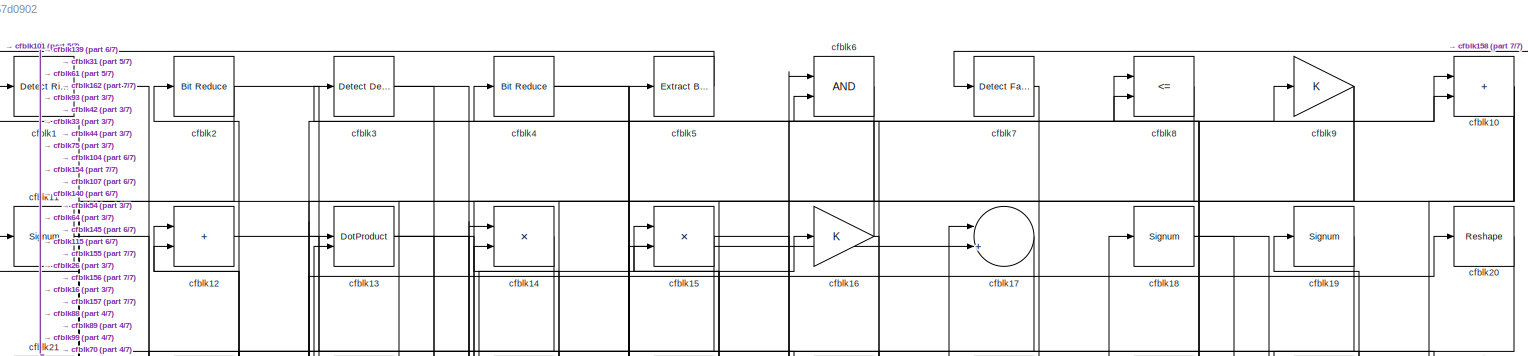
[diagram: root canvas - part 1/7, full width, top band]
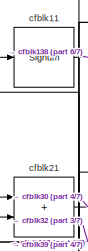
[diagram: root canvas - part 2/7, top left region]
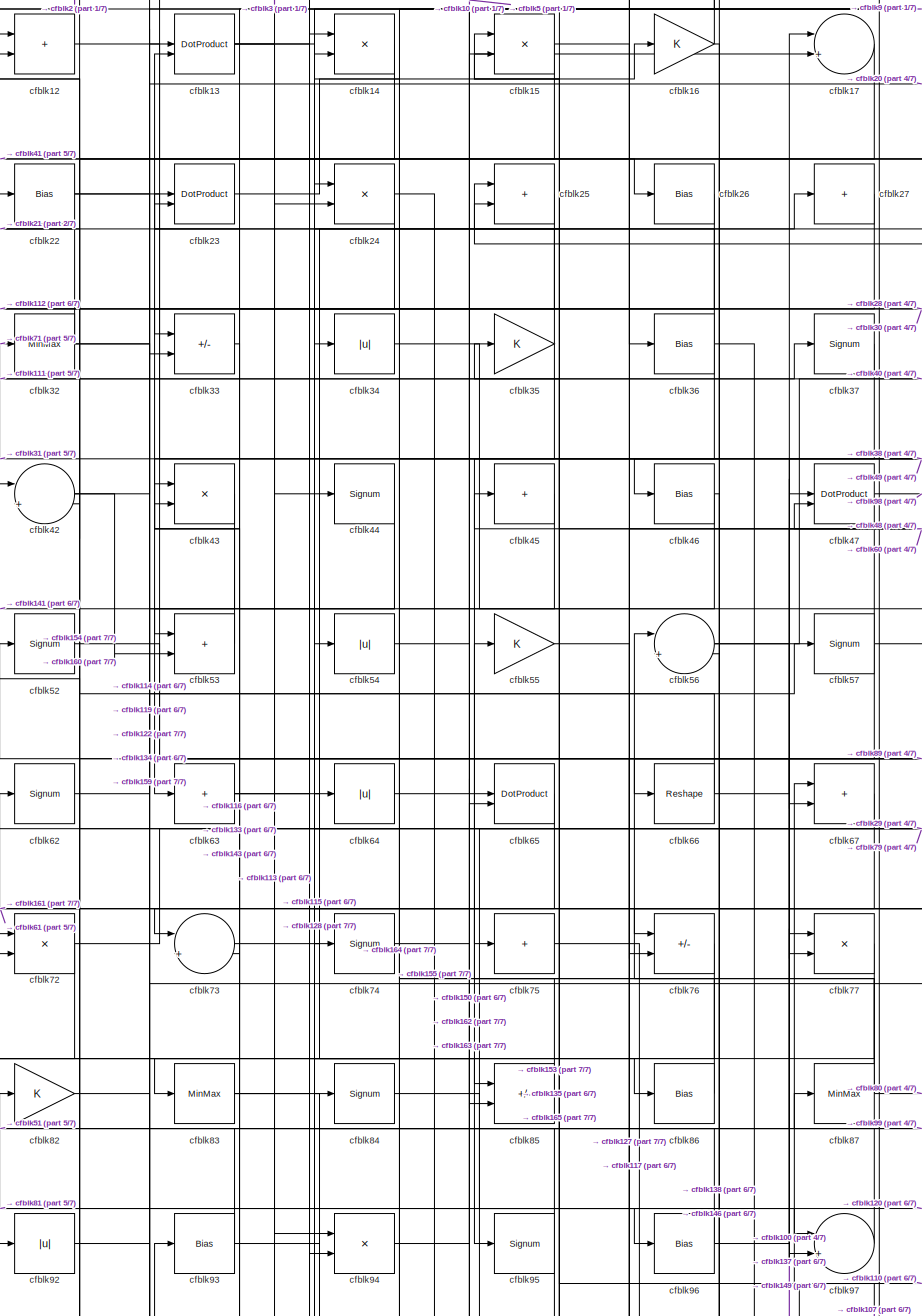
[diagram: root canvas - part 3/7, top center region]
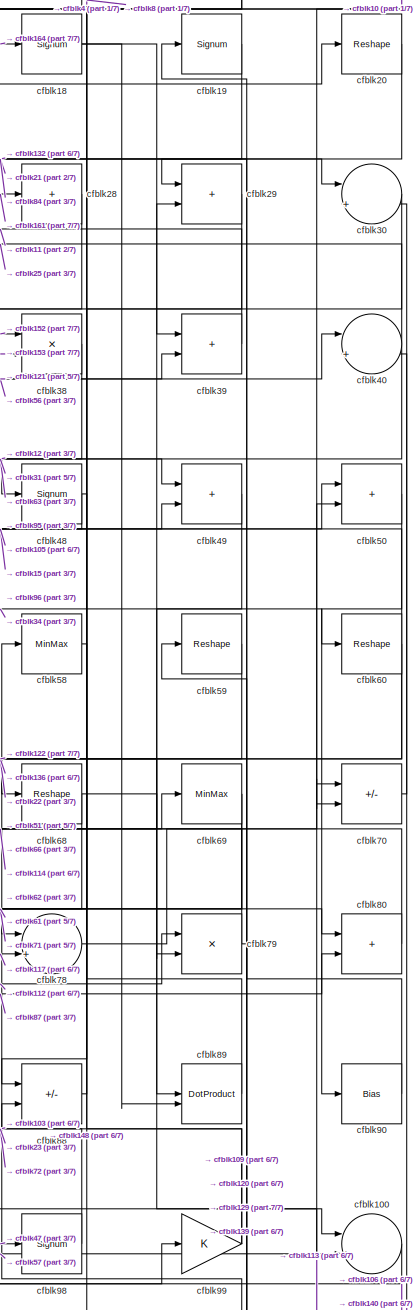
[diagram: root canvas - part 4/7, top right region]
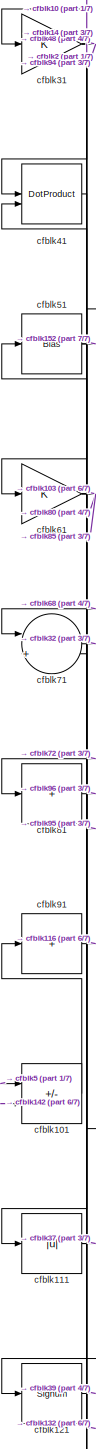
[diagram: root canvas - part 5/7, middle left region]
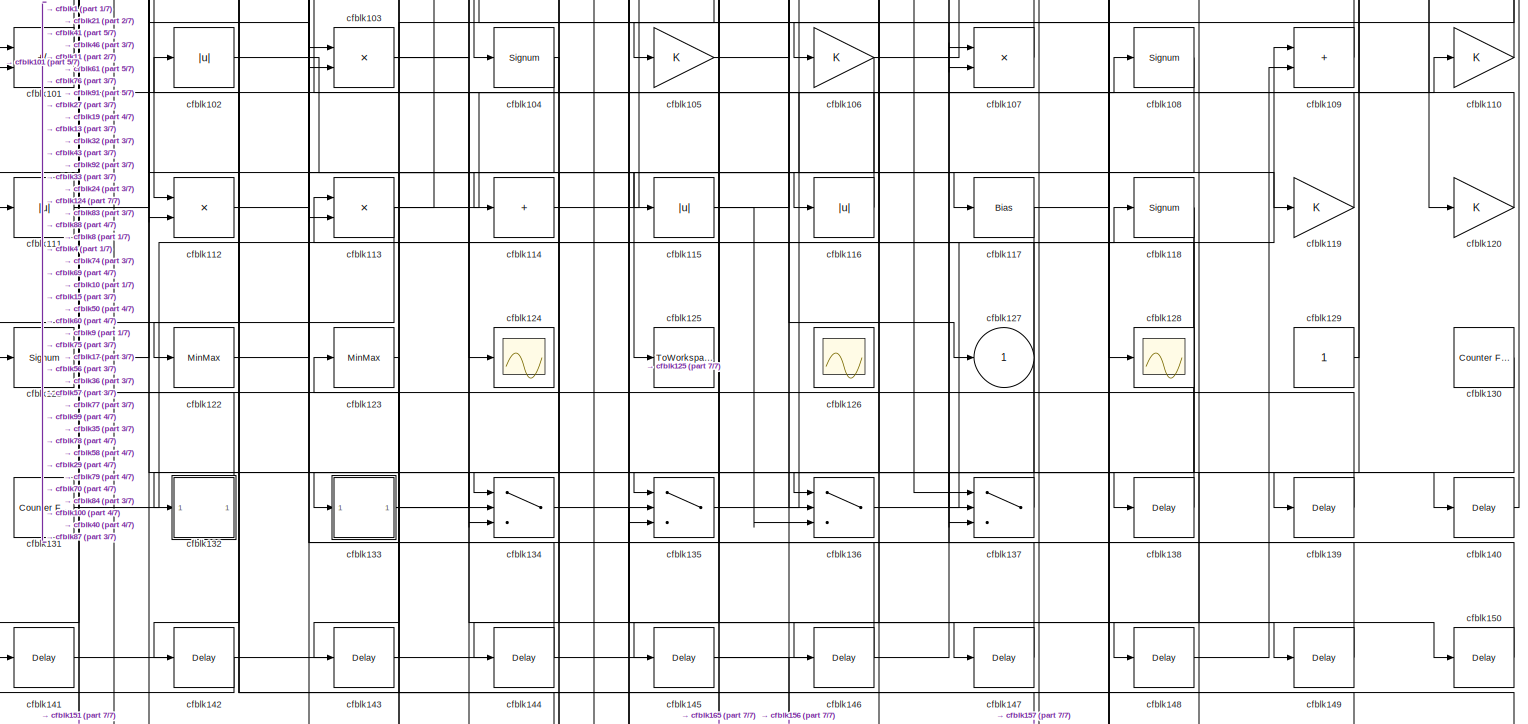
[diagram: root canvas - part 6/7, full width, bottom band]
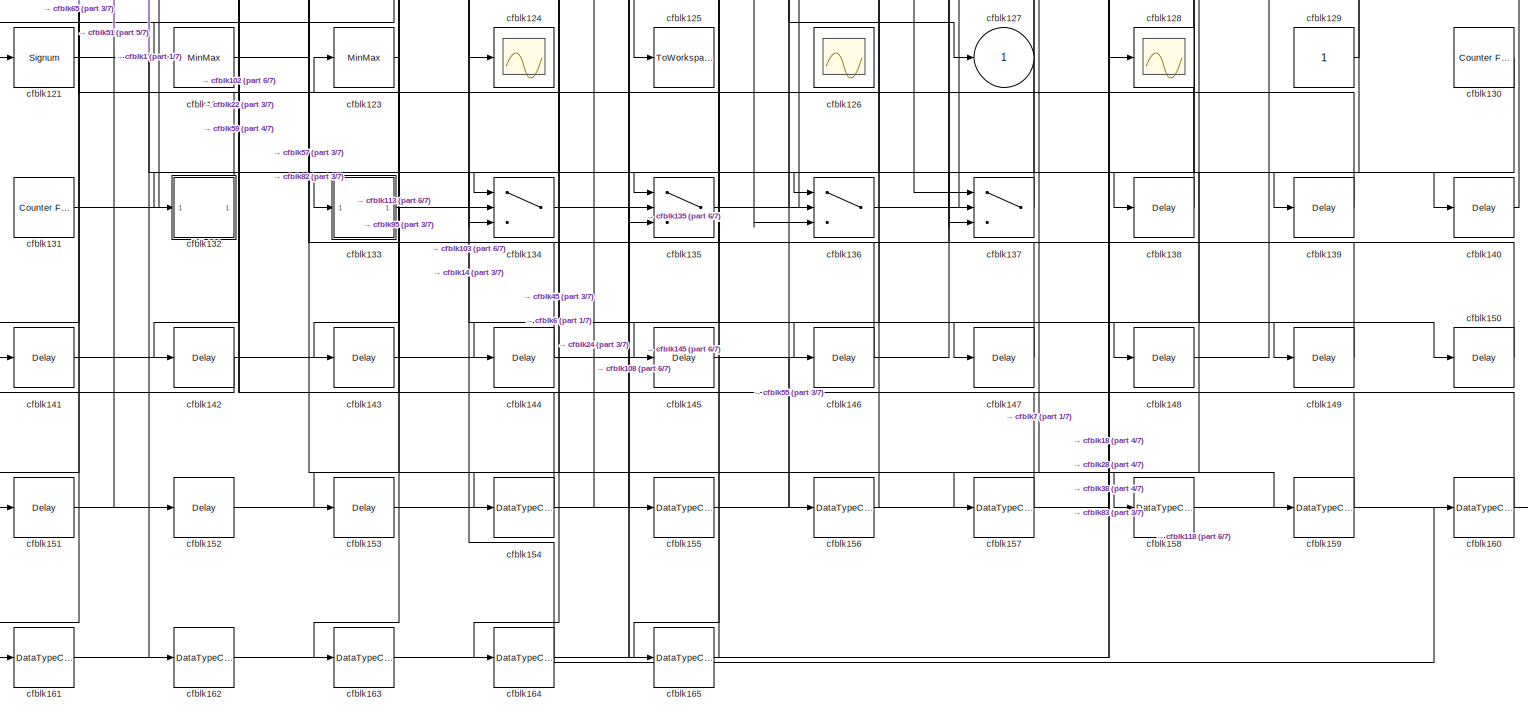
[diagram: root canvas - part 7/7, full width, bottom band]
MODEL slx_a4c6657d0902
KIND model
CONFIG AbsTol = auto
CONFIG EnableMultiTasking = off
CONFIG FixedStep = auto
CONFIG MaxStep = auto
CONFIG MinStep = auto
CONFIG RelTol = 1e-3
CONFIG SampleTimeConstraint = Unconstrained
CONFIG SolverName = VariableStepAuto
CONFIG StartTime = 0.0
CONFIG StopTime = 10.0
BLOCK [Reference] cfblk1  REF=hdlsllib/Logic and Bit
Operations/Detect Rise
Nonnegative
  SourceBlock = hdlsllib/Logic and Bit\nOperations/Detect Rise\nNonnegative
  SourceType = Detect Rise Nonnegative
BLOCK [Sum] cfblk10
  IconShape = rectangular
BLOCK [Sum] cfblk100
  Inputs = |++
BLOCK [Sum] cfblk101
  IconShape = rectangular
  Inputs = +-
BLOCK [Abs] cfblk102
  SaturateOnIntegerOverflow = off
BLOCK [Product] cfblk103
  Inputs = */
  RndMeth = Zero
  SaturateOnIntegerOverflow = on
BLOCK [Signum] cfblk104
BLOCK [Gain] cfblk105
BLOCK [Gain] cfblk106
BLOCK [Product] cfblk107
  Inputs = */
  RndMeth = Zero
  SaturateOnIntegerOverflow = on
BLOCK [Signum] cfblk108
BLOCK [Sum] cfblk109
  IconShape = rectangular
BLOCK [Signum] cfblk11
BLOCK [Gain] cfblk110
BLOCK [Abs] cfblk111
  SaturateOnIntegerOverflow = off
BLOCK [Product] cfblk112
  Inputs = */
  RndMeth = Zero
  SaturateOnIntegerOverflow = on
BLOCK [Product] cfblk113
  Inputs = */
  RndMeth = Zero
  SaturateOnIntegerOverflow = on
BLOCK [Sum] cfblk114
  IconShape = rectangular
  Inputs = +
BLOCK [Abs] cfblk115
  SaturateOnIntegerOverflow = off
BLOCK [Abs] cfblk116
  SaturateOnIntegerOverflow = off
BLOCK [Bias] cfblk117
  Bias = 0.0
  SaturateOnIntegerOverflow = off
BLOCK [Signum] cfblk118
BLOCK [Gain] cfblk119
BLOCK [Sum] cfblk12
  IconShape = rectangular
BLOCK [Gain] cfblk120
BLOCK [Signum] cfblk121
BLOCK [MinMax] cfblk122
BLOCK [MinMax] cfblk123
BLOCK [Scope] cfblk124
  Floating = off
  NumInputPorts = 1
  ScopeSpecificationString = Simulink.scopes.TimeScopeBlockCfg('CurrentConfiguration', extmgr.ConfigurationSet(extmgr.Configuration('Core','General UI',true),extmgr.Configuration('Core','Source UI',true),extmgr.Configuration('Sources','WiredSimulink',true,'DataLoggingVariableName','ScopeData2','DataLoggingSaveFormat','Array','DataLoggingLimitDataPoints',true,'DataLoggingDecimation','1'),extmgr.Configuration('Visuals','Time Do...<+868ch>
BLOCK [ToWorkspace] cfblk125
  MaxDataPoints = inf
  SampleTime = -1
  SaveFormat = Timeseries
  VariableName = simout
BLOCK [Scope] cfblk126
  Floating = on
  NumInputPorts = 1
  ScopeSpecificationString = Simulink.scopes.TimeScopeBlockCfg('CurrentConfiguration', extmgr.ConfigurationSet(extmgr.Configuration('Core','General UI',true,'FigureColor',[0.156862745098039 0.156862745098039 0.156862745098039]),extmgr.Configuration('Core','Source UI',true),extmgr.Configuration('Sources','WiredSimulink',true,'DataLoggingVariableName','ScopeData1','DataLoggingSaveFormat','StructureWithTime','DataLoggingLimitDat...<+2713ch>
BLOCK [Outport] cfblk127
  VectorParamsAs1DForOutWhenUnconnected = off
BLOCK [Scope] cfblk128
  Floating = off
  NumInputPorts = 1
  ScopeSpecificationString = Simulink.scopes.TimeScopeBlockCfg('CurrentConfiguration', extmgr.ConfigurationSet(extmgr.Configuration('Core','General UI',true),extmgr.Configuration('Core','Source UI',true),extmgr.Configuration('Sources','WiredSimulink',true,'DataLoggingVariableName','ScopeData2','DataLoggingSaveFormat','Array','DataLoggingLimitDataPoints',true,'DataLoggingDecimation','1'),extmgr.Configuration('Visuals','Time Do...<+868ch>
BLOCK [Constant] cfblk129
  SampleTime = -1
BLOCK [DotProduct] cfblk13
  OutDataTypeStr = Inherit: Inherit via internal rule
BLOCK [Reference] cfblk130  REF=hdlsllib/Sources/Counter
Free-Running
  SourceBlock = hdlsllib/Sources/Counter\nFree-Running
  SourceType = Counter Free-Running
BLOCK [Reference] cfblk131  REF=hdlsllib/Sources/Counter
Free-Running
  SourceBlock = hdlsllib/Sources/Counter\nFree-Running
  SourceType = Counter Free-Running
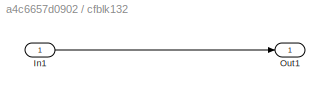
BLOCK [SubSystem] cfblk132
  LibrarySourceBlock = hdlsllib/Ports &\nSubsystems/Subsystem
BLOCK [Inport] cfblk132/In1
BLOCK [Outport] cfblk132/Out1
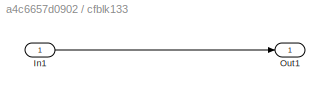
BLOCK [SubSystem] cfblk133
  LibrarySourceBlock = hdlsllib/Ports &\nSubsystems/Subsystem
BLOCK [Inport] cfblk133/In1
BLOCK [Outport] cfblk133/Out1
BLOCK [Switch] cfblk134
  InputSameDT = off
  SaturateOnIntegerOverflow = off
BLOCK [Switch] cfblk135
  InputSameDT = off
  SaturateOnIntegerOverflow = off
BLOCK [Switch] cfblk136
  InputSameDT = off
  SaturateOnIntegerOverflow = off
BLOCK [Switch] cfblk137
  InputSameDT = off
  SaturateOnIntegerOverflow = off
BLOCK [Delay] cfblk138
  InputPortMap = u0
  SampleTime = 1
BLOCK [Delay] cfblk139
  InputPortMap = u0
  SampleTime = 1
BLOCK [Product] cfblk14
  Inputs = */
  RndMeth = Zero
  SaturateOnIntegerOverflow = on
BLOCK [Delay] cfblk140
  InputPortMap = u0
  SampleTime = 1
BLOCK [Delay] cfblk141
  InputPortMap = u0
  SampleTime = 1
BLOCK [Delay] cfblk142
  InputPortMap = u0
  SampleTime = 1
BLOCK [Delay] cfblk143
  InputPortMap = u0
  SampleTime = 1
BLOCK [Delay] cfblk144
  InputPortMap = u0
  SampleTime = 1
BLOCK [Delay] cfblk145
  InputPortMap = u0
  SampleTime = 1
BLOCK [Delay] cfblk146
  InputPortMap = u0
  SampleTime = 1
BLOCK [Delay] cfblk147
  InputPortMap = u0
  SampleTime = 1
BLOCK [Delay] cfblk148
  InputPortMap = u0
  SampleTime = 1
BLOCK [Delay] cfblk149
  InputPortMap = u0
  SampleTime = 1
BLOCK [Product] cfblk15
  Inputs = */
  RndMeth = Zero
  SaturateOnIntegerOverflow = on
BLOCK [Delay] cfblk150
  InputPortMap = u0
  SampleTime = 1
BLOCK [Delay] cfblk151
  InputPortMap = u0
  SampleTime = 1
BLOCK [Delay] cfblk152
  InputPortMap = u0
  SampleTime = 1
BLOCK [Delay] cfblk153
  InputPortMap = u0
  SampleTime = 1
BLOCK [DataTypeConversion] cfblk154
  OutDataTypeStr = uint8
  RndMeth = Floor
  SaturateOnIntegerOverflow = off
BLOCK [DataTypeConversion] cfblk155
  OutDataTypeStr = uint8
  RndMeth = Floor
  SaturateOnIntegerOverflow = off
BLOCK [DataTypeConversion] cfblk156
  OutDataTypeStr = uint8
  RndMeth = Floor
  SaturateOnIntegerOverflow = off
BLOCK [DataTypeConversion] cfblk157
  OutDataTypeStr = uint8
  RndMeth = Floor
  SaturateOnIntegerOverflow = off
BLOCK [DataTypeConversion] cfblk158
  OutDataTypeStr = uint8
  RndMeth = Floor
  SaturateOnIntegerOverflow = off
BLOCK [DataTypeConversion] cfblk159
  OutDataTypeStr = uint8
  RndMeth = Floor
  SaturateOnIntegerOverflow = off
BLOCK [Gain] cfblk16
BLOCK [DataTypeConversion] cfblk160
  OutDataTypeStr = uint8
  RndMeth = Floor
  SaturateOnIntegerOverflow = off
BLOCK [DataTypeConversion] cfblk161
  OutDataTypeStr = uint8
  RndMeth = Floor
  SaturateOnIntegerOverflow = off
BLOCK [DataTypeConversion] cfblk162
  OutDataTypeStr = uint8
  RndMeth = Floor
  SaturateOnIntegerOverflow = off
BLOCK [DataTypeConversion] cfblk163
  OutDataTypeStr = uint8
  RndMeth = Floor
  SaturateOnIntegerOverflow = off
BLOCK [DataTypeConversion] cfblk164
  RndMeth = Floor
  SaturateOnIntegerOverflow = off
BLOCK [DataTypeConversion] cfblk165
  OutDataTypeStr = uint8
  RndMeth = Floor
  SaturateOnIntegerOverflow = off
BLOCK [Sum] cfblk17
  Inputs = |++
BLOCK [Signum] cfblk18
BLOCK [Signum] cfblk19
BLOCK [Reference] cfblk2  REF=hdlsllib/Logic and Bit
Operations/Bit Reduce
  SourceBlock = hdlsllib/Logic and Bit\nOperations/Bit Reduce
  SourceType = Bit Reduce
BLOCK [Reshape] cfblk20
BLOCK [Sum] cfblk21
  IconShape = rectangular
BLOCK [Bias] cfblk22
  Bias = 0.0
  SaturateOnIntegerOverflow = off
BLOCK [DotProduct] cfblk23
  OutDataTypeStr = Inherit: Inherit via internal rule
BLOCK [Product] cfblk24
  Inputs = */
  RndMeth = Zero
  SaturateOnIntegerOverflow = on
BLOCK [Sum] cfblk25
  IconShape = rectangular
BLOCK [Bias] cfblk26
  Bias = 0.0
  SaturateOnIntegerOverflow = off
BLOCK [Sum] cfblk27
  IconShape = rectangular
  Inputs = +
BLOCK [Sum] cfblk28
  IconShape = rectangular
  Inputs = +
BLOCK [Sum] cfblk29
  IconShape = rectangular
BLOCK [Reference] cfblk3  REF=simulink/Logic and Bit
Operations/Detect
Decrease
  LibrarySourceBlock = hdlsllib/Logic and Bit\nOperations/Detect\nDecrease
  SourceBlock = simulink/Logic and Bit\nOperations/Detect\nDecrease
  SourceType = Detect Decrease
BLOCK [Sum] cfblk30
  Inputs = |++
BLOCK [Gain] cfblk31
BLOCK [MinMax] cfblk32
BLOCK [Sum] cfblk33
  IconShape = rectangular
  Inputs = +-
BLOCK [Abs] cfblk34
  SaturateOnIntegerOverflow = off
BLOCK [Gain] cfblk35
BLOCK [Bias] cfblk36
  Bias = 0.0
  SaturateOnIntegerOverflow = off
BLOCK [Signum] cfblk37
BLOCK [Product] cfblk38
  Inputs = */
  RndMeth = Zero
  SaturateOnIntegerOverflow = on
BLOCK [Sum] cfblk39
  IconShape = rectangular
BLOCK [Reference] cfblk4  REF=hdlsllib/Logic and Bit
Operations/Bit Reduce
  SourceBlock = hdlsllib/Logic and Bit\nOperations/Bit Reduce
  SourceType = Bit Reduce
BLOCK [Sum] cfblk40
  Inputs = |++
BLOCK [DotProduct] cfblk41
  OutDataTypeStr = Inherit: Inherit via internal rule
BLOCK [Sum] cfblk42
  Inputs = |++
BLOCK [Product] cfblk43
  Inputs = */
  RndMeth = Zero
  SaturateOnIntegerOverflow = on
BLOCK [Signum] cfblk44
BLOCK [Sum] cfblk45
  IconShape = rectangular
  Inputs = +
BLOCK [Bias] cfblk46
  Bias = 0.0
  SaturateOnIntegerOverflow = off
BLOCK [DotProduct] cfblk47
  OutDataTypeStr = Inherit: Inherit via internal rule
BLOCK [Signum] cfblk48
BLOCK [Sum] cfblk49
  IconShape = rectangular
BLOCK [Reference] cfblk5  REF=simulink/Logic and Bit
Operations/Extract Bits
  LibrarySourceBlock = hdlsllib/Logic and Bit\nOperations/Extract Bits
  SourceBlock = simulink/Logic and Bit\nOperations/Extract Bits
  SourceType = Extract Bits
BLOCK [Sum] cfblk50
  IconShape = rectangular
BLOCK [Bias] cfblk51
  Bias = 0.0
  SaturateOnIntegerOverflow = off
BLOCK [Signum] cfblk52
BLOCK [Sum] cfblk53
  IconShape = rectangular
BLOCK [Abs] cfblk54
  SaturateOnIntegerOverflow = off
BLOCK [Gain] cfblk55
BLOCK [Sum] cfblk56
  Inputs = |++
BLOCK [Signum] cfblk57
BLOCK [MinMax] cfblk58
BLOCK [Reshape] cfblk59
BLOCK [Logic] cfblk6
  AllPortsSameDT = off
  OutDataTypeStr = boolean
BLOCK [Reshape] cfblk60
BLOCK [Gain] cfblk61
BLOCK [Signum] cfblk62
BLOCK [Sum] cfblk63
  IconShape = rectangular
  Inputs = +
BLOCK [Abs] cfblk64
  SaturateOnIntegerOverflow = off
BLOCK [DotProduct] cfblk65
  OutDataTypeStr = Inherit: Inherit via internal rule
BLOCK [Reshape] cfblk66
BLOCK [Sum] cfblk67
  IconShape = rectangular
BLOCK [Reshape] cfblk68
BLOCK [MinMax] cfblk69
BLOCK [Reference] cfblk7  REF=hdlsllib/Logic and Bit
Operations/Detect Fall
Nonpositive
  SourceBlock = hdlsllib/Logic and Bit\nOperations/Detect Fall\nNonpositive
  SourceType = Detect Fall Nonpositive
BLOCK [Sum] cfblk70
  IconShape = rectangular
  Inputs = +-
BLOCK [Sum] cfblk71
  Inputs = |++
BLOCK [Product] cfblk72
  Inputs = */
  RndMeth = Zero
  SaturateOnIntegerOverflow = on
BLOCK [Sum] cfblk73
  Inputs = |++
BLOCK [Signum] cfblk74
BLOCK [Sum] cfblk75
  IconShape = rectangular
  Inputs = +
BLOCK [Sum] cfblk76
  IconShape = rectangular
  Inputs = +-
BLOCK [Product] cfblk77
  Inputs = */
  RndMeth = Zero
  SaturateOnIntegerOverflow = on
BLOCK [Sum] cfblk78
  Inputs = |++
BLOCK [Product] cfblk79
  Inputs = */
  RndMeth = Zero
  SaturateOnIntegerOverflow = on
BLOCK [RelationalOperator] cfblk8
  InputSameDT = off
  Operator = <=
  OutDataTypeStr = boolean
BLOCK [Sum] cfblk80
  IconShape = rectangular
BLOCK [Sum] cfblk81
  IconShape = rectangular
  Inputs = +
BLOCK [Gain] cfblk82
BLOCK [MinMax] cfblk83
BLOCK [Signum] cfblk84
BLOCK [Sum] cfblk85
  IconShape = rectangular
  Inputs = +-
BLOCK [Bias] cfblk86
  Bias = 0.0
  SaturateOnIntegerOverflow = off
BLOCK [MinMax] cfblk87
BLOCK [Sum] cfblk88
  IconShape = rectangular
  Inputs = +-
BLOCK [DotProduct] cfblk89
  OutDataTypeStr = Inherit: Inherit via internal rule
BLOCK [Gain] cfblk9
BLOCK [Bias] cfblk90
  Bias = 0.0
  SaturateOnIntegerOverflow = off
BLOCK [Sum] cfblk91
  IconShape = rectangular
  Inputs = +
BLOCK [Abs] cfblk92
  SaturateOnIntegerOverflow = off
BLOCK [Bias] cfblk93
  Bias = 0.0
  SaturateOnIntegerOverflow = off
BLOCK [Product] cfblk94
  Inputs = */
  RndMeth = Zero
  SaturateOnIntegerOverflow = on
BLOCK [Signum] cfblk95
BLOCK [Bias] cfblk96
  Bias = 0.0
  SaturateOnIntegerOverflow = off
BLOCK [Sum] cfblk97
  Inputs = |++
BLOCK [Signum] cfblk98
BLOCK [Gain] cfblk99
LINE cfblk100:1 -> cfblk106:1
LINE cfblk101:1 -> cfblk91:1
LINE cfblk102:1 -> cfblk134:2
NET cfblk103:1 -> cfblk124:1, cfblk88:2
NET cfblk104:1 -> cfblk143:1, cfblk144:1
LINE cfblk105:1 -> cfblk50:1
NET cfblk106:1 -> cfblk134:1, cfblk99:1
LINE cfblk107:1 -> cfblk35:1
LINE cfblk108:1 -> cfblk125:1
LINE cfblk109:1 -> cfblk58:1
NET cfblk10:1 -> cfblk145:1, cfblk61:1, cfblk70:2
LINE cfblk110:1 -> cfblk87:1
NET cfblk111:1 -> cfblk37:1, cfblk71:2
LINE cfblk112:1 -> cfblk79:1
NET cfblk113:1 -> cfblk151:1, cfblk24:2, cfblk70:1
LINE cfblk114:1 -> cfblk69:1
NET cfblk115:1 -> cfblk136:3, cfblk9:1
LINE cfblk116:1 -> cfblk43:1
NET cfblk117:1 -> cfblk142:1, cfblk78:2
NET cfblk118:1 -> cfblk137:3, cfblk165:1
LINE cfblk119:1 -> cfblk21:1
LINE cfblk11:1 -> cfblk138:1
LINE cfblk120:1 -> cfblk29:1
LINE cfblk121:1 -> cfblk39:2
LINE cfblk122:1 -> cfblk57:1
LINE cfblk123:1 -> cfblk163:1
LINE cfblk129:1 -> cfblk59:1
LINE cfblk12:1 -> cfblk49:1
LINE cfblk130:1 -> cfblk158:1
LINE cfblk131:1 -> cfblk118:1
LINE cfblk132/In1:1 -> cfblk132/Out1:1
LINE cfblk132:1 -> cfblk41:2
LINE cfblk133/In1:1 -> cfblk133/Out1:1
NET cfblk133:1 -> cfblk108:1, cfblk147:1
LINE cfblk134:1 -> cfblk149:1
LINE cfblk135:1 -> cfblk110:1
LINE cfblk136:1 -> cfblk109:1
LINE cfblk137:1 -> cfblk113:1
LINE cfblk138:1 -> cfblk56:2
LINE cfblk139:1 -> cfblk1:1
NET cfblk13:1 -> cfblk54:1, cfblk85:2, cfblk94:1
LINE cfblk140:1 -> cfblk40:2
LINE cfblk141:1 -> cfblk107:1
LINE cfblk142:1 -> cfblk101:2
LINE cfblk143:1 -> cfblk43:2
LINE cfblk144:1 -> cfblk103:1
LINE cfblk145:1 -> cfblk156:1
LINE cfblk146:1 -> cfblk13:1
LINE cfblk147:1 -> cfblk135:2
LINE cfblk148:1 -> cfblk109:2
LINE cfblk149:1 -> cfblk77:1
LINE cfblk14:1 -> cfblk41:1
LINE cfblk150:1 -> cfblk15:2
LINE cfblk151:1 -> cfblk135:3
LINE cfblk152:1 -> cfblk38:1
LINE cfblk153:1 -> cfblk38:2
LINE cfblk154:1 -> cfblk22:1
LINE cfblk155:1 -> cfblk6:1
LINE cfblk156:1 -> cfblk6:2
LINE cfblk157:1 -> cfblk102:1
LINE cfblk158:1 -> cfblk7:1
LINE cfblk159:1 -> cfblk123:1
NET cfblk15:1 -> cfblk36:1, cfblk42:2
LINE cfblk160:1 -> cfblk82:1
LINE cfblk161:1 -> cfblk28:1
LINE cfblk162:1 -> cfblk65:1
LINE cfblk163:1 -> cfblk65:2
NET cfblk164:1 -> cfblk14:1, cfblk160:1, cfblk18:1
LINE cfblk165:1 -> cfblk45:1
NET cfblk16:1 -> cfblk3:1, cfblk46:1
LINE cfblk17:1 -> cfblk146:1
NET cfblk18:1 -> cfblk39:1, cfblk89:2
LINE cfblk19:1 -> cfblk132:1
LINE cfblk1:1 -> cfblk162:1
LINE cfblk20:1 -> cfblk84:1
LINE cfblk21:1 -> cfblk30:1
NET cfblk22:1 -> cfblk67:2, cfblk89:1
LINE cfblk23:1 -> cfblk16:1
NET cfblk24:1 -> cfblk155:1, cfblk73:1
LINE cfblk25:1 -> cfblk42:1
LINE cfblk26:1 -> cfblk83:1
LINE cfblk27:1 -> cfblk112:1
LINE cfblk28:1 -> cfblk34:1
LINE cfblk29:1 -> cfblk78:1
NET cfblk2:1 -> cfblk26:1, cfblk31:1
LINE cfblk30:1 -> cfblk72:2
NET cfblk31:1 -> cfblk111:1, cfblk48:1, cfblk94:2
NET cfblk32:1 -> cfblk114:1, cfblk119:1, cfblk21:2
LINE cfblk33:1 -> cfblk133:1
LINE cfblk34:1 -> cfblk60:1
NET cfblk35:1 -> cfblk14:2, cfblk93:1
NET cfblk36:1 -> cfblk135:1, cfblk137:1, cfblk23:2
LINE cfblk37:1 -> cfblk77:2
LINE cfblk38:1 -> cfblk95:1
LINE cfblk39:1 -> cfblk11:1
NET cfblk3:1 -> cfblk44:1, cfblk75:1
NET cfblk40:1 -> cfblk25:2, cfblk63:1
LINE cfblk41:1 -> cfblk121:1
NET cfblk42:1 -> cfblk10:2, cfblk53:2
LINE cfblk43:1 -> cfblk113:2
NET cfblk44:1 -> cfblk53:1, cfblk73:2
LINE cfblk45:1 -> cfblk164:1
NET cfblk46:1 -> cfblk141:1, cfblk76:1
LINE cfblk47:1 -> cfblk98:1
NET cfblk48:1 -> cfblk47:2, cfblk88:1
LINE cfblk49:1 -> cfblk79:2
NET cfblk4:1 -> cfblk107:2, cfblk140:1
LINE cfblk50:1 -> cfblk90:1
NET cfblk51:1 -> cfblk152:1, cfblk68:1
LINE cfblk52:1 -> cfblk76:2
LINE cfblk53:1 -> cfblk13:2
LINE cfblk54:1 -> cfblk10:1
LINE cfblk55:1 -> cfblk127:1
NET cfblk56:1 -> cfblk40:1, cfblk97:2
NET cfblk57:1 -> cfblk100:2, cfblk137:2, cfblk25:1
LINE cfblk58:1 -> cfblk148:1
LINE cfblk59:1 -> cfblk122:1
LINE cfblk5:1 -> cfblk101:1
NET cfblk60:1 -> cfblk136:2, cfblk15:1, cfblk66:1
NET cfblk61:1 -> cfblk103:2, cfblk80:1, cfblk85:1
LINE cfblk62:1 -> cfblk20:1
NET cfblk63:1 -> cfblk86:1, cfblk97:1
LINE cfblk64:1 -> cfblk5:1
LINE cfblk65:1 -> cfblk161:1
NET cfblk66:1 -> cfblk12:2, cfblk17:1
LINE cfblk67:1 -> cfblk74:1
NET cfblk68:1 -> cfblk100:1, cfblk71:1
NET cfblk69:1 -> cfblk105:1, cfblk136:1
LINE cfblk6:1 -> cfblk154:1
LINE cfblk70:1 -> cfblk30:2
LINE cfblk71:1 -> cfblk32:1
NET cfblk72:1 -> cfblk29:2, cfblk81:1
LINE cfblk73:1 -> cfblk27:1
LINE cfblk74:1 -> cfblk150:1
LINE cfblk75:1 -> cfblk117:1
LINE cfblk76:1 -> cfblk112:2
LINE cfblk77:1 -> cfblk92:1
LINE cfblk78:1 -> cfblk50:2
NET cfblk79:1 -> cfblk139:1, cfblk62:1
LINE cfblk7:1 -> cfblk157:1
LINE cfblk80:1 -> cfblk12:1
LINE cfblk81:1 -> cfblk96:1
LINE cfblk82:1 -> cfblk159:1
NET cfblk83:1 -> cfblk115:1, cfblk128:1
LINE cfblk84:1 -> cfblk120:1
LINE cfblk85:1 -> cfblk55:1
LINE cfblk86:1 -> cfblk64:1
NET cfblk87:1 -> cfblk24:1, cfblk56:1, cfblk80:2
LINE cfblk88:1 -> cfblk8:1
LINE cfblk89:1 -> cfblk4:1
LINE cfblk8:1 -> cfblk104:1
LINE cfblk90:1 -> cfblk19:1
LINE cfblk91:1 -> cfblk116:1
LINE cfblk92:1 -> cfblk134:3
NET cfblk93:1 -> cfblk2:1, cfblk47:1
LINE cfblk94:1 -> cfblk17:2
NET cfblk95:1 -> cfblk153:1, cfblk51:1
NET cfblk96:1 -> cfblk49:2, cfblk52:1
LINE cfblk97:1 -> cfblk67:1
LINE cfblk98:1 -> cfblk23:1
NET cfblk99:1 -> cfblk72:1, cfblk8:2
NET cfblk9:1 -> cfblk33:1, cfblk33:2
note: NET lines group one-source signal fan-out (src -> all destinations, sorted); 1:1 wires keep LINE
